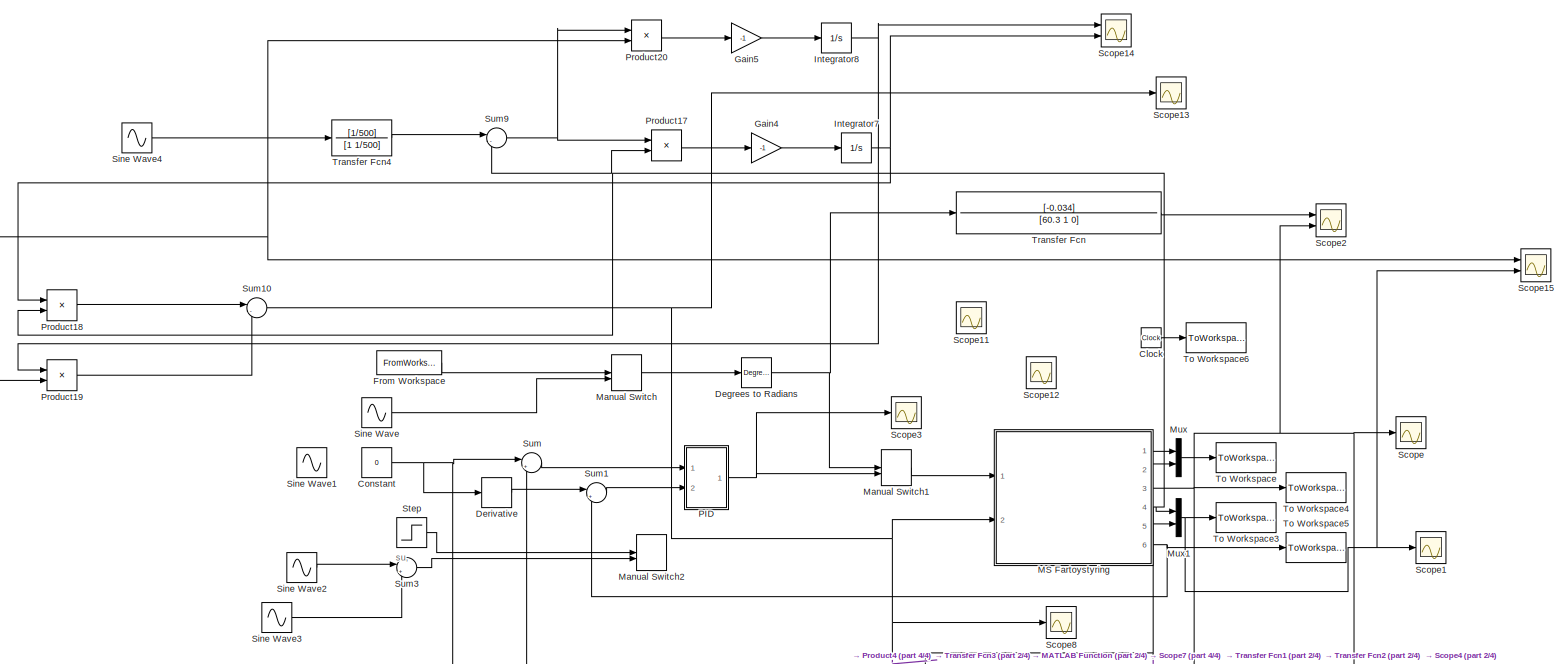
[diagram: root canvas - part 1/4, top left region]
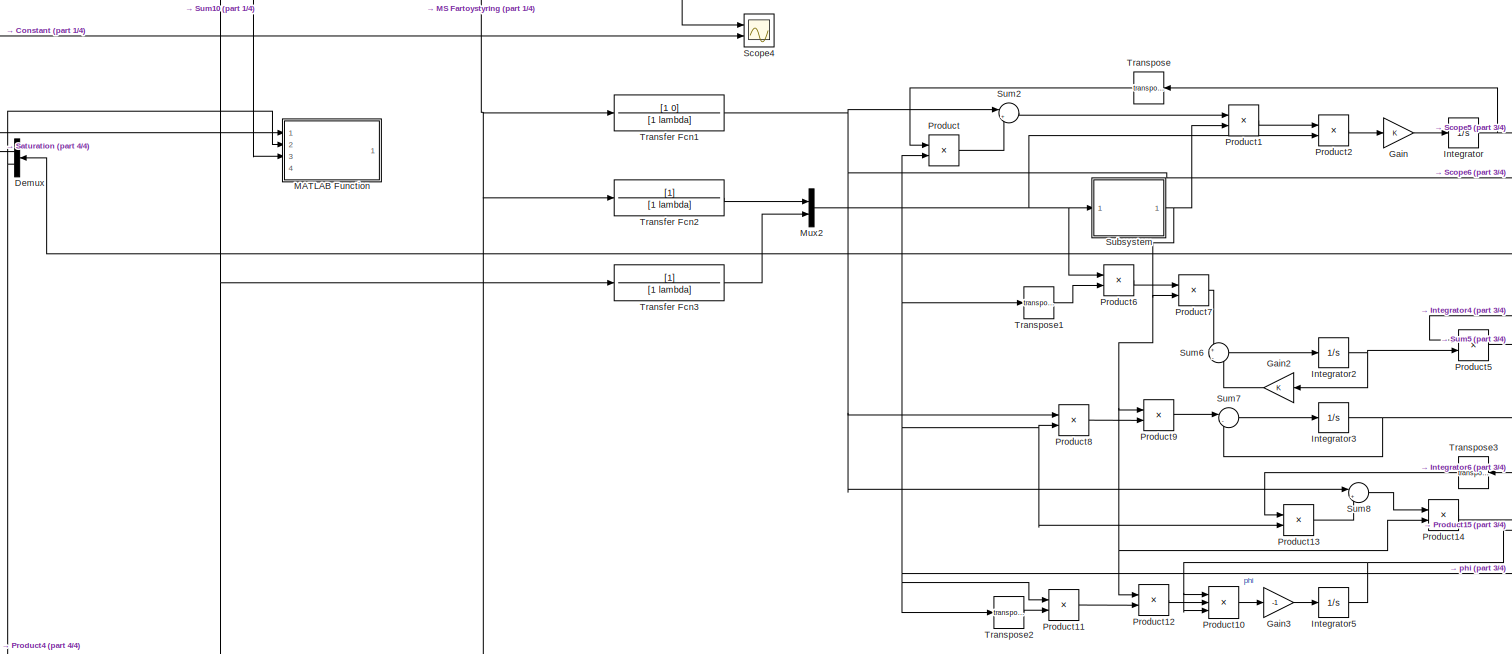
[diagram: root canvas - part 2/4, central region]
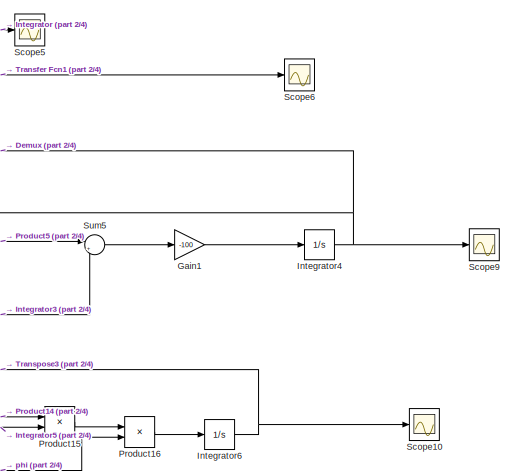
[diagram: root canvas - part 3/4, middle right region]
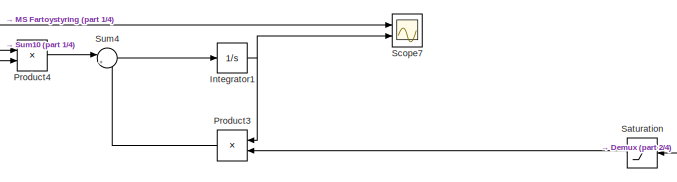
[diagram: root canvas - part 4/4, bottom center region]
MODEL slx_58f1f63805c6
KIND model
CONFIG AbsTol = auto
CONFIG EnableMultiTasking = on
CONFIG FixedStep = auto
CONFIG MaxStep = auto
CONFIG MinStep = auto
CONFIG RelTol = 1e-2
CONFIG SampleTimeConstraint = Unconstrained
CONFIG Solver = VariableStepAuto
CONFIG SolverName = VariableStepAuto
CONFIG StartTime = tstart
CONFIG StopTime = tstop
BLOCK [Clock] Clock
BLOCK [Constant] Constant
  Value = 0
BLOCK [Reference] Degrees to Radians  REF=simulink_extras/Transformations/Degrees to
Radians
  Ports = [1, 1]
  SourceBlock = simulink_extras/Transformations/Degrees to\nRadians
  SourceProductBaseCode = SL
  SourceProductName = Simulink
  SourceType = DegreesToRadians
BLOCK [Demux] Demux
  Commented = on
  DisplayOption = bar
  Outputs = 2
  Ports = [1, 2]
BLOCK [Derivative] Derivative
BLOCK [FromWorkspace] From Workspace
  SampleTime = 0
  VariableName = delta_c
  ZeroCross = on
BLOCK [Gain] Gain
  Commented = on
  OutDataTypeStr = Inherit: Inherit via internal rule
  ParamDataTypeStr = Inherit: Inherit via internal rule
  SaturateOnIntegerOverflow = off
BLOCK [Gain] Gain1
  Commented = on
  Gain = -100
  OutDataTypeStr = Inherit: Inherit via internal rule
  ParamDataTypeStr = Inherit: Inherit via internal rule
  SaturateOnIntegerOverflow = off
BLOCK [Gain] Gain2
  Commented = on
  OutDataTypeStr = Inherit: Inherit via internal rule
  ParamDataTypeStr = Inherit: Inherit via internal rule
  SaturateOnIntegerOverflow = off
BLOCK [Gain] Gain3
  Commented = on
  Gain = -1
  OutDataTypeStr = Inherit: Inherit via internal rule
  ParamDataTypeStr = Inherit: Inherit via internal rule
  SaturateOnIntegerOverflow = off
BLOCK [Gain] Gain4
  Gain = -1
  OutDataTypeStr = Inherit: Inherit via internal rule
  ParamDataTypeStr = Inherit: Inherit via internal rule
  SaturateOnIntegerOverflow = off
BLOCK [Gain] Gain5
  Gain = -1
  OutDataTypeStr = Inherit: Inherit via internal rule
  ParamDataTypeStr = Inherit: Inherit via internal rule
  SaturateOnIntegerOverflow = off
BLOCK [Integrator] Integrator
  Commented = on
  InitialCondition = [-10;10]
  Ports = [1, 1]
BLOCK [Integrator] Integrator1
  Commented = on
  InitialCondition = v0(1)
  Ports = [1, 1]
BLOCK [Integrator] Integrator2
  Commented = on
  InitialCondition = [0 0;0 0]
  Ports = [1, 1]
BLOCK [Integrator] Integrator3
  Commented = on
  InitialCondition = [0;0]
  Ports = [1, 1]
BLOCK [Integrator] Integrator4
  Commented = on
  InitialCondition = [-0.1 0.1]
  LimitOutput = on
  LowerSaturationLimit = [-inf 0.0001]
  Ports = [1, 1]
  UpperSaturationLimit = [-0.0001 inf]
BLOCK [Integrator] Integrator5
  Commented = on
  InitialCondition = [100 0; 0 100]
  Ports = [1, 1]
BLOCK [Integrator] Integrator6
  Commented = on
  InitialCondition = [-1; 1]
  LimitOutput = on
  LowerSaturationLimit = [-inf; 0]
  Ports = [1, 1]
  UpperSaturationLimit = [0; inf]
BLOCK [Integrator] Integrator7
  InitialCondition = 5
  LimitOutput = on
  LowerSaturationLimit = 0
  Ports = [1, 1]
BLOCK [Integrator] Integrator8
  InitialCondition = 10
  LimitOutput = on
  LowerSaturationLimit = 0
  Ports = [1, 1]
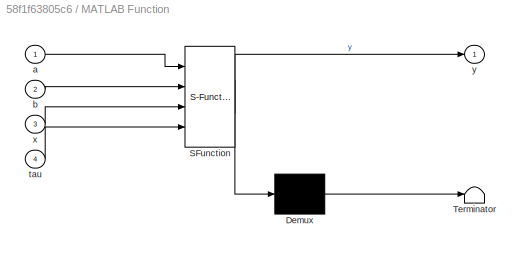
BLOCK [SubSystem] MATLAB Function
  Commented = on
  ErrorFcn = Stateflow.Translate.translate
  PermitHierarchicalResolution = ExplicitOnly
  Ports = [4, 1]
  RequestExecContextInheritance = off
  SFBlockType = MATLAB Function
  TreatAsAtomicUnit = on
BLOCK [Demux] MATLAB Function/ Demux 
  Outputs = 1
  Ports = [1, 1]
BLOCK [S-Function] MATLAB Function/ SFunction 
  EnableBusSupport = on
  FunctionName = sf_sfun
  PortCounts = [4 2]
  Ports = [4, 2]
  SFcnIsStateOwnerBlock = off
  SFunctionDeploymentMode = off
  Tag = Stateflow S-Function MSFartoystyring_jallajalla_adaptiv 2
BLOCK [Terminator] MATLAB Function/ Terminator 
BLOCK [Inport] MATLAB Function/a
  IconDisplay = Port number
BLOCK [Inport] MATLAB Function/b
  IconDisplay = Port number
  Port = 2
BLOCK [Inport] MATLAB Function/tau
  IconDisplay = Port number
  Port = 4
BLOCK [Inport] MATLAB Function/x
  IconDisplay = Port number
  Port = 3
BLOCK [Outport] MATLAB Function/y
  IconDisplay = Port number
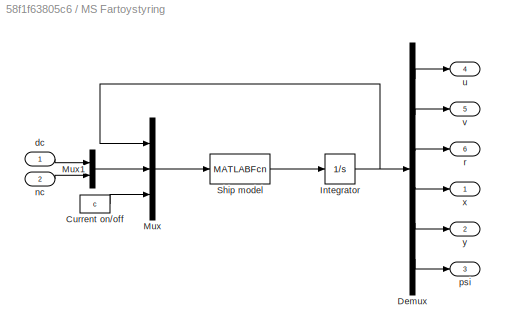
BLOCK [SubSystem] MS Fartoystyring
  Ports = [2, 6]
  RequestExecContextInheritance = off
BLOCK [Constant] MS Fartoystyring/Current on//off
  Value = c
BLOCK [Demux] MS Fartoystyring/Demux
  DisplayOption = bar
  Outputs = 6
  Ports = [1, 6]
BLOCK [Integrator] MS Fartoystyring/Integrator
  InitialCondition = [u0 v0 r0 x0 y0 psi0]'
  Ports = [1, 1]
BLOCK [Mux] MS Fartoystyring/Mux
  DisplayOption = bar
  Inputs = 3
  Ports = [3, 1]
BLOCK [Mux] MS Fartoystyring/Mux1
  DisplayOption = bar
  Inputs = 2
  Ports = [2, 1]
BLOCK [MATLABFcn] MS Fartoystyring/Ship model
  MATLABFcn = msfartoystyring(u(1:6), u(7:8), u(9))
  OutputDimensions = 6
  Ports = [1, 1]
BLOCK [Inport] MS Fartoystyring/dc
  IconDisplay = Port number
BLOCK [Inport] MS Fartoystyring/nc
  IconDisplay = Port number
  Port = 2
BLOCK [Outport] MS Fartoystyring/psi
  IconDisplay = Port number
  Port = 3
BLOCK [Outport] MS Fartoystyring/r
  IconDisplay = Port number
  Port = 6
BLOCK [Outport] MS Fartoystyring/u
  IconDisplay = Port number
  Port = 4
BLOCK [Outport] MS Fartoystyring/v
  IconDisplay = Port number
  Port = 5
BLOCK [Outport] MS Fartoystyring/x
  IconDisplay = Port number
BLOCK [Outport] MS Fartoystyring/y
  IconDisplay = Port number
  Port = 2
BLOCK [ManualSwitch] Manual Switch
  CurrentSetting = 0
BLOCK [ManualSwitch] Manual Switch1
  CurrentSetting = 0
BLOCK [ManualSwitch] Manual Switch2
BLOCK [Mux] Mux
  DisplayOption = bar
  Inputs = 2
  Ports = [2, 1]
BLOCK [Mux] Mux1
  DisplayOption = bar
  Inputs = 2
  Ports = [2, 1]
BLOCK [Mux] Mux2
  Commented = on
  DisplayOption = bar
  Inputs = 2
  Ports = [2, 1]
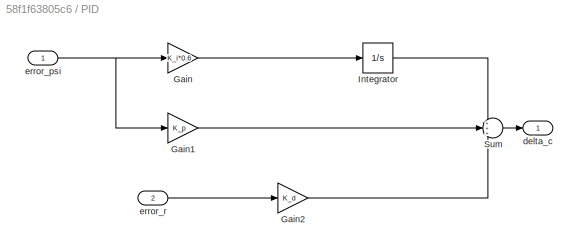
BLOCK [SubSystem] PID
  Ports = [2, 1]
  RequestExecContextInheritance = off
BLOCK [Gain] PID/Gain
  Gain = K_i*0.6
  OutDataTypeStr = Inherit: Inherit via internal rule
  ParamDataTypeStr = Inherit: Inherit via internal rule
  SaturateOnIntegerOverflow = off
BLOCK [Gain] PID/Gain1
  Gain = K_p
  OutDataTypeStr = Inherit: Inherit via internal rule
  ParamDataTypeStr = Inherit: Inherit via internal rule
  SaturateOnIntegerOverflow = off
BLOCK [Gain] PID/Gain2
  Gain = K_d
  OutDataTypeStr = Inherit: Inherit via internal rule
  ParamDataTypeStr = Inherit: Inherit via internal rule
  SaturateOnIntegerOverflow = off
BLOCK [Integrator] PID/Integrator
  Ports = [1, 1]
BLOCK [Sum] PID/Sum
  IconShape = round
  InputSameDT = off
  Inputs = +++
  OutDataTypeStr = Inherit: Inherit via internal rule
  Ports = [3, 1]
  SaturateOnIntegerOverflow = off
BLOCK [Outport] PID/delta_c
  IconDisplay = Port number
BLOCK [Inport] PID/error_psi
  IconDisplay = Port number
BLOCK [Inport] PID/error_r 
  IconDisplay = Port number
  Port = 2
BLOCK [Product] Product
  Commented = on
  InputSameDT = off
  Multiplication = Matrix(*)
  OutDataTypeStr = Inherit: Inherit via internal rule
  Ports = [2, 1]
  RndMeth = Floor
  SaturateOnIntegerOverflow = off
BLOCK [Product] Product1
  Commented = on
  InputSameDT = off
  Inputs = */
  OutDataTypeStr = Inherit: Inherit via internal rule
  Ports = [2, 1]
  RndMeth = Floor
  SaturateOnIntegerOverflow = off
BLOCK [Product] Product10
  Commented = on
  InputSameDT = off
  Inputs = ***
  Multiplication = Matrix(*)
  OutDataTypeStr = Inherit: Inherit via internal rule
  Ports = [3, 1]
  RndMeth = Floor
  SaturateOnIntegerOverflow = off
BLOCK [Product] Product11
  Commented = on
  InputSameDT = off
  Multiplication = Matrix(*)
  OutDataTypeStr = Inherit: Inherit via internal rule
  Ports = [2, 1]
  RndMeth = Floor
  SaturateOnIntegerOverflow = off
BLOCK [Product] Product12
  Commented = on
  InputSameDT = off
  Inputs = /*
  OutDataTypeStr = Inherit: Inherit via internal rule
  Ports = [2, 1]
  RndMeth = Floor
  SaturateOnIntegerOverflow = off
BLOCK [Product] Product13
  Commented = on
  InputSameDT = off
  Multiplication = Matrix(*)
  OutDataTypeStr = Inherit: Inherit via internal rule
  Ports = [2, 1]
  RndMeth = Floor
  SaturateOnIntegerOverflow = off
BLOCK [Product] Product14
  Commented = on
  InputSameDT = off
  Inputs = */
  OutDataTypeStr = Inherit: Inherit via internal rule
  Ports = [2, 1]
  RndMeth = Floor
  SaturateOnIntegerOverflow = off
BLOCK [Product] Product15
  Commented = on
  InputSameDT = off
  OutDataTypeStr = Inherit: Inherit via internal rule
  Ports = [2, 1]
  RndMeth = Floor
  SaturateOnIntegerOverflow = off
BLOCK [Product] Product16
  Commented = on
  InputSameDT = off
  Multiplication = Matrix(*)
  OutDataTypeStr = Inherit: Inherit via internal rule
  Ports = [2, 1]
  RndMeth = Floor
  SaturateOnIntegerOverflow = off
BLOCK [Product] Product17
  InputSameDT = off
  OutDataTypeStr = Inherit: Inherit via internal rule
  Ports = [2, 1]
  RndMeth = Floor
  SaturateOnIntegerOverflow = off
BLOCK [Product] Product18
  InputSameDT = off
  OutDataTypeStr = Inherit: Inherit via internal rule
  Ports = [2, 1]
  RndMeth = Floor
  SaturateOnIntegerOverflow = off
BLOCK [Product] Product19
  InputSameDT = off
  OutDataTypeStr = Inherit: Inherit via internal rule
  Ports = [2, 1]
  RndMeth = Floor
  SaturateOnIntegerOverflow = off
BLOCK [Product] Product2
  Commented = on
  InputSameDT = off
  OutDataTypeStr = Inherit: Inherit via internal rule
  Ports = [2, 1]
  RndMeth = Floor
  SaturateOnIntegerOverflow = off
BLOCK [Product] Product20
  InputSameDT = off
  OutDataTypeStr = Inherit: Inherit via internal rule
  Ports = [2, 1]
  RndMeth = Floor
  SaturateOnIntegerOverflow = off
BLOCK [Product] Product3
  Commented = on
  InputSameDT = off
  OutDataTypeStr = Inherit: Inherit via internal rule
  Ports = [2, 1]
  RndMeth = Floor
  SaturateOnIntegerOverflow = off
BLOCK [Product] Product4
  Commented = on
  InputSameDT = off
  OutDataTypeStr = Inherit: Inherit via internal rule
  Ports = [2, 1]
  RndMeth = Floor
  SaturateOnIntegerOverflow = off
BLOCK [Product] Product5
  Commented = on
  InputSameDT = off
  Multiplication = Matrix(*)
  OutDataTypeStr = Inherit: Inherit via internal rule
  Ports = [2, 1]
  RndMeth = Floor
  SaturateOnIntegerOverflow = off
BLOCK [Product] Product6
  Commented = on
  InputSameDT = off
  Multiplication = Matrix(*)
  OutDataTypeStr = Inherit: Inherit via internal rule
  Ports = [2, 1]
  RndMeth = Floor
  SaturateOnIntegerOverflow = off
BLOCK [Product] Product7
  Commented = on
  InputSameDT = off
  Inputs = */
  OutDataTypeStr = Inherit: Inherit via internal rule
  Ports = [2, 1]
  RndMeth = Floor
  SaturateOnIntegerOverflow = off
BLOCK [Product] Product8
  Commented = on
  InputSameDT = off
  OutDataTypeStr = Inherit: Inherit via internal rule
  Ports = [2, 1]
  RndMeth = Floor
  SaturateOnIntegerOverflow = off
BLOCK [Product] Product9
  Commented = on
  InputSameDT = off
  Inputs = /*
  OutDataTypeStr = Inherit: Inherit via internal rule
  Ports = [2, 1]
  RndMeth = Floor
  SaturateOnIntegerOverflow = off
BLOCK [Saturate] Saturation
  Commented = on
  InputPortMap = u0
  LowerLimit = -inf
  Ports = [1, 1]
  UpperLimit = 0
BLOCK [Scope] Scope
  Floating = off
  NumInputPorts = 1
  Ports = [1]
  ScopeSpecificationString = Simulink.scopes.TimeScopeBlockCfg('CurrentConfiguration', extmgr.ConfigurationSet(extmgr.Configuration('Core','General UI',true),extmgr.Configuration('Core','Source UI',true),extmgr.Configuration('Sources','WiredSimulink',true,'DataLoggingVariableName','ScopeData1'),extmgr.Configuration('Visuals','Time Domain',true,'SerializedDisplays',{struct('MinYLimReal','-0.00544','MaxYLimReal','0.00287','YLab...<+1377ch>
BLOCK [Scope] Scope1
  Floating = off
  NumInputPorts = 1
  Ports = [1]
  ScopeSpecificationString = Simulink.scopes.TimeScopeBlockCfg('CurrentConfiguration', extmgr.ConfigurationSet(extmgr.Configuration('Core','General UI',true),extmgr.Configuration('Core','Source UI',true),extmgr.Configuration('Sources','WiredSimulink',true,'DataLoggingVariableName','ScopeData4'),extmgr.Configuration('Visuals','Time Domain',true,'SerializedDisplays',{struct('MinYLimReal','0.78161','MaxYLimReal','6.52383','YLabe...<+1440ch>
BLOCK [Scope] Scope10
  Commented = on
  Floating = off
  NumInputPorts = 1
  Ports = [1]
  ScopeSpecificationString = Simulink.scopes.TimeScopeBlockCfg('CurrentConfiguration', extmgr.ConfigurationSet(extmgr.Configuration('Core','General UI',true),extmgr.Configuration('Core','Source UI',true),extmgr.Configuration('Sources','WiredSimulink',true,'DataLoggingVariableName','ScopeData10'),extmgr.Configuration('Visuals','Time Domain',true,'SerializedDisplays',{struct('MinYLimReal','-50.50825','MaxYLimReal','410.54031','...<+1443ch>
BLOCK [Scope] Scope11
  Floating = off
  NumInputPorts = 1
  Ports = [1]
  ScopeSpecificationString = Simulink.scopes.TimeScopeBlockCfg('CurrentConfiguration', extmgr.ConfigurationSet(extmgr.Configuration('Core','General UI',true),extmgr.Configuration('Core','Source UI',true),extmgr.Configuration('Sources','WiredSimulink',true,'DataLoggingVariableName','ScopeData11'),extmgr.Configuration('Visuals','Time Domain',true,'SerializedDisplays',{struct('MinYLimReal','-1.00000','MaxYLimReal','1.00000','YLa...<+1369ch>
BLOCK [Scope] Scope12
  Floating = off
  NumInputPorts = 1
  Ports = [1]
  ScopeSpecificationString = Simulink.scopes.TimeScopeBlockCfg('CurrentConfiguration', extmgr.ConfigurationSet(extmgr.Configuration('Core','General UI',true),extmgr.Configuration('Core','Source UI',true),extmgr.Configuration('Sources','WiredSimulink',true,'DataLoggingVariableName','ScopeData12'),extmgr.Configuration('Visuals','Time Domain',true,'SerializedDisplays',{struct('MinYLimReal','-0.54542','MaxYLimReal','0.54542','YLa...<+1378ch>
BLOCK [Scope] Scope13
  Floating = off
  NumInputPorts = 1
  Ports = [1]
  ScopeSpecificationString = Simulink.scopes.TimeScopeBlockCfg('CurrentConfiguration', extmgr.ConfigurationSet(extmgr.Configuration('Core','General UI',true),extmgr.Configuration('Core','Source UI',true),extmgr.Configuration('Sources','WiredSimulink',true,'DataLoggingVariableName','ScopeData11'),extmgr.Configuration('Visuals','Time Domain',true,'SerializedDisplays',{struct('MinYLimReal','-76.04357','MaxYLimReal','71.55113','Y...<+1371ch>
BLOCK [Scope] Scope14
  Floating = off
  NumInputPorts = 2
  Ports = [2]
  ScopeSpecificationString = Simulink.scopes.TimeScopeBlockCfg('CurrentConfiguration', extmgr.ConfigurationSet(extmgr.Configuration('Core','General UI',true),extmgr.Configuration('Core','Source UI',true),extmgr.Configuration('Sources','WiredSimulink',true,'DataLoggingVariableName','ScopeData12'),extmgr.Configuration('Visuals','Time Domain',true,'SerializedDisplays',{struct('MinYLimReal','-719.88814','MaxYLimReal','6478.99326'...<+1403ch>
BLOCK [Scope] Scope15
  Floating = off
  NumInputPorts = 2
  Ports = [2]
  ScopeSpecificationString = Simulink.scopes.TimeScopeBlockCfg('CurrentConfiguration', extmgr.ConfigurationSet(extmgr.Configuration('Core','General UI',true),extmgr.Configuration('Core','Source UI',true),extmgr.Configuration('Sources','WiredSimulink',true,'DataLoggingVariableName','ScopeData13'),extmgr.Configuration('Visuals','Time Domain',true,'SerializedDisplays',{struct('MinYLimReal','-0.75294','MaxYLimReal','6.75033','YLa...<+1412ch>
BLOCK [Scope] Scope2
  Floating = off
  NumInputPorts = 2
  Ports = [2]
  ScopeSpecificationString = Simulink.scopes.TimeScopeBlockCfg('CurrentConfiguration', extmgr.ConfigurationSet(extmgr.Configuration('Core','General UI',true),extmgr.Configuration('Core','Source UI',true),extmgr.Configuration('Sources','WiredSimulink',true,'DataLoggingVariableName','ScopeData1'),extmgr.Configuration('Visuals','Time Domain',true,'SerializedDisplays',{struct('MinYLimReal','-11.34487','MaxYLimReal','1.26054','YLa...<+1415ch>
BLOCK [Scope] Scope3
  Floating = off
  NumInputPorts = 1
  Ports = [1]
  ScopeSpecificationString = Simulink.scopes.TimeScopeBlockCfg('CurrentConfiguration', extmgr.ConfigurationSet(extmgr.Configuration('Core','General UI',true),extmgr.Configuration('Core','Source UI',true),extmgr.Configuration('Sources','WiredSimulink',true,'DataLoggingVariableName','ScopeData2'),extmgr.Configuration('Visuals','Time Domain',true,'SerializedDisplays',{struct('MinYLimReal','-0.01984','MaxYLimReal','0.00471','YLab...<+1362ch>
BLOCK [Scope] Scope4
  Floating = off
  NumInputPorts = 2
  Ports = [2]
  ScopeSpecificationString = Simulink.scopes.TimeScopeBlockCfg('CurrentConfiguration', extmgr.ConfigurationSet(extmgr.Configuration('Core','General UI',true),extmgr.Configuration('Core','Source UI',true),extmgr.Configuration('Sources','WiredSimulink',true,'DataLoggingVariableName','ScopeData3'),extmgr.Configuration('Visuals','Time Domain',true,'SerializedDisplays',{struct('MinYLimReal','-0.00544','MaxYLimReal','0.00287','YLab...<+1388ch>
BLOCK [Scope] Scope5
  Commented = on
  Floating = off
  NumInputPorts = 1
  Ports = [1]
  ScopeSpecificationString = Simulink.scopes.TimeScopeBlockCfg('CurrentConfiguration', extmgr.ConfigurationSet(extmgr.Configuration('Core','General UI',true),extmgr.Configuration('Core','Source UI',true),extmgr.Configuration('Sources','WiredSimulink',true,'DataLoggingVariableName','ScopeData5'),extmgr.Configuration('Visuals','Time Domain',true,'SerializedDisplays',{struct('MinYLimReal','-15.74914','MaxYLimReal','16.53673','YL...<+1436ch>
BLOCK [Scope] Scope6
  Commented = on
  Floating = off
  NumInputPorts = 1
  Ports = [1]
  ScopeSpecificationString = Simulink.scopes.TimeScopeBlockCfg('CurrentConfiguration', extmgr.ConfigurationSet(extmgr.Configuration('Core','General UI',true),extmgr.Configuration('Core','Source UI',true),extmgr.Configuration('Sources','WiredSimulink',true,'DataLoggingVariableName','ScopeData6'),extmgr.Configuration('Visuals','Time Domain',true,'SerializedDisplays',{struct('MinYLimReal','-0.25083','MaxYLimReal','2.25009','YLab...<+1391ch>
BLOCK [Scope] Scope7
  Commented = on
  Floating = off
  NumInputPorts = 2
  Ports = [2]
  ScopeSpecificationString = Simulink.scopes.TimeScopeBlockCfg('CurrentConfiguration', extmgr.ConfigurationSet(extmgr.Configuration('Core','General UI',true),extmgr.Configuration('Core','Source UI',true),extmgr.Configuration('Sources','WiredSimulink',true,'DataLoggingVariableName','ScopeData7'),extmgr.Configuration('Visuals','Time Domain',true,'SerializedDisplays',{struct('MinYLimReal','1.26819','MaxYLimReal','8.58628','YLabe...<+1488ch>
BLOCK [Scope] Scope8
  Floating = off
  NumInputPorts = 1
  Ports = [1]
  ScopeSpecificationString = Simulink.scopes.TimeScopeBlockCfg('CurrentConfiguration', extmgr.ConfigurationSet(extmgr.Configuration('Core','General UI',true),extmgr.Configuration('Core','Source UI',true),extmgr.Configuration('Sources','WiredSimulink',true,'DataLoggingVariableName','ScopeData8'),extmgr.Configuration('Visuals','Time Domain',true,'SerializedDisplays',{struct('MinYLimReal','-76.04357','MaxYLimReal','71.55113','YL...<+1370ch>
BLOCK [Scope] Scope9
  Commented = on
  Floating = off
  NumInputPorts = 1
  Ports = [1]
  ScopeSpecificationString = Simulink.scopes.TimeScopeBlockCfg('CurrentConfiguration', extmgr.ConfigurationSet(extmgr.Configuration('Core','General UI',true),extmgr.Configuration('Core','Source UI',true),extmgr.Configuration('Sources','WiredSimulink',true,'DataLoggingVariableName','ScopeData9'),extmgr.Configuration('Visuals','Time Domain',true,'SerializedDisplays',{struct('MinYLimReal','-1.37948','MaxYLimReal','1.48262','YLab...<+1407ch>
BLOCK [Sin] Sine Wave
  Amplitude = 10
  Frequency = 0.01
  Ports = [0, 1]
  SampleTime = 0
BLOCK [Sin] Sine Wave1
  Amplitude = 0.4
  Frequency = 0.004
  Ports = [0, 1]
  SampleTime = 0
BLOCK [Sin] Sine Wave2
  Amplitude = 2
  Bias = 2
  Frequency = 0.0007274
  Ports = [0, 1]
  SampleTime = 0
BLOCK [Sin] Sine Wave3
  Amplitude = 2.42
  Frequency = 0.00012425
  Ports = [0, 1]
  SampleTime = 0
BLOCK [Sin] Sine Wave4
  Amplitude = 2
  Bias = 4
  Frequency = 0.001
  Ports = [0, 1]
  SampleTime = 0
BLOCK [Step] Step
  After = 4
  Before = 2
  SampleTime = 0
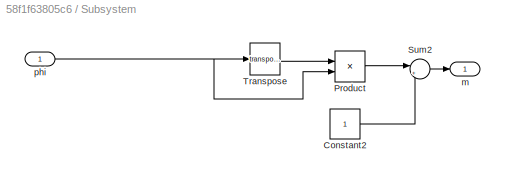
BLOCK [SubSystem] Subsystem
  Commented = on
  Ports = [1, 1]
  RequestExecContextInheritance = off
BLOCK [Constant] Subsystem/Constant2
BLOCK [Product] Subsystem/Product
  InputSameDT = off
  Multiplication = Matrix(*)
  OutDataTypeStr = Inherit: Inherit via internal rule
  Ports = [2, 1]
  RndMeth = Floor
  SaturateOnIntegerOverflow = off
BLOCK [Sum] Subsystem/Sum2
  IconShape = round
  InputSameDT = off
  Inputs = |++
  OutDataTypeStr = Inherit: Inherit via internal rule
  Ports = [2, 1]
  SaturateOnIntegerOverflow = off
BLOCK [Math] Subsystem/Transpose
  Operator = transpose
  Ports = [1, 1]
BLOCK [Outport] Subsystem/m
  IconDisplay = Port number
BLOCK [Inport] Subsystem/phi
  IconDisplay = Port number
BLOCK [Sum] Sum
  IconShape = round
  InputSameDT = off
  Inputs = |+-
  OutDataTypeStr = Inherit: Inherit via internal rule
  Ports = [2, 1]
  SaturateOnIntegerOverflow = off
BLOCK [Sum] Sum1
  IconShape = round
  InputSameDT = off
  Inputs = |+-
  OutDataTypeStr = Inherit: Inherit via internal rule
  Ports = [2, 1]
  SaturateOnIntegerOverflow = off
BLOCK [Sum] Sum10
  IconShape = round
  InputSameDT = off
  Inputs = |-+
  OutDataTypeStr = Inherit: Inherit via internal rule
  Ports = [2, 1]
  SaturateOnIntegerOverflow = off
BLOCK [Sum] Sum2
  Commented = on
  IconShape = round
  InputSameDT = off
  Inputs = |+-
  OutDataTypeStr = Inherit: Inherit via internal rule
  Ports = [2, 1]
  SaturateOnIntegerOverflow = off
BLOCK [Sum] Sum3
  IconShape = round
  InputSameDT = off
  Inputs = |++
  OutDataTypeStr = Inherit: Inherit via internal rule
  Ports = [2, 1]
  SaturateOnIntegerOverflow = off
BLOCK [Sum] Sum4
  Commented = on
  IconShape = round
  InputSameDT = off
  Inputs = |++
  OutDataTypeStr = Inherit: Inherit via internal rule
  Ports = [2, 1]
  SaturateOnIntegerOverflow = off
BLOCK [Sum] Sum5
  Commented = on
  IconShape = round
  InputSameDT = off
  Inputs = |++
  OutDataTypeStr = Inherit: Inherit via internal rule
  Ports = [2, 1]
  SaturateOnIntegerOverflow = off
BLOCK [Sum] Sum6
  Commented = on
  IconShape = round
  InputSameDT = off
  Inputs = +|-
  OutDataTypeStr = Inherit: Inherit via internal rule
  Ports = [2, 1]
  SaturateOnIntegerOverflow = off
BLOCK [Sum] Sum7
  Commented = on
  IconShape = round
  InputSameDT = off
  Inputs = |--
  OutDataTypeStr = Inherit: Inherit via internal rule
  Ports = [2, 1]
  SaturateOnIntegerOverflow = off
BLOCK [Sum] Sum8
  Commented = on
  IconShape = round
  InputSameDT = off
  Inputs = |+-
  OutDataTypeStr = Inherit: Inherit via internal rule
  Ports = [2, 1]
  SaturateOnIntegerOverflow = off
BLOCK [Sum] Sum9
  IconShape = round
  InputSameDT = off
  Inputs = |-+
  OutDataTypeStr = Inherit: Inherit via internal rule
  Ports = [2, 1]
  SaturateOnIntegerOverflow = off
BLOCK [ToWorkspace] To Workspace
  MaxDataPoints = inf
  Ports = [1]
  SampleTime = tsamp
  VariableName = p
BLOCK [ToWorkspace] To Workspace3
  MaxDataPoints = inf
  Ports = [1]
  SampleTime = tsamp
  VariableName = v
BLOCK [ToWorkspace] To Workspace4
  MaxDataPoints = inf
  Ports = [1]
  SampleTime = tsamp
  VariableName = psi
BLOCK [ToWorkspace] To Workspace5
  MaxDataPoints = inf
  Ports = [1]
  SampleTime = tsamp
  VariableName = r
BLOCK [ToWorkspace] To Workspace6
  MaxDataPoints = inf
  Ports = [1]
  SampleTime = tsamp
  VariableName = t
BLOCK [TransferFcn] Transfer Fcn
  Denominator = [60.3 1 0]
  Numerator = [-0.034]
BLOCK [TransferFcn] Transfer Fcn1
  Commented = on
  Denominator = [1 lambda]
  Numerator = [1 0]
BLOCK [TransferFcn] Transfer Fcn2
  Commented = on
  Denominator = [1 lambda]
BLOCK [TransferFcn] Transfer Fcn3
  Commented = on
  Denominator = [1 lambda]
BLOCK [TransferFcn] Transfer Fcn4
  Denominator = [1 1/500]
  Numerator = [1/500]
BLOCK [Math] Transpose
  Commented = on
  Operator = transpose
  Ports = [1, 1]
BLOCK [Math] Transpose1
  Commented = on
  Operator = transpose
  Ports = [1, 1]
BLOCK [Math] Transpose2
  Commented = on
  Operator = transpose
  Ports = [1, 1]
BLOCK [Math] Transpose3
  Commented = on
  Operator = transpose
  Ports = [1, 1]
ANNOTATION (root): su,
LINE Clock:1 -> To Workspace6:1
NET Constant:1 -> Derivative:1, Scope4:2, Sum:1
NET Degrees to Radians:1 -> Manual Switch1:1, Transfer Fcn:1
NET Demux:1 -> MATLAB Function:1, Saturation:1
NET Demux:2 -> MATLAB Function:2, Product4:2
LINE Derivative:1 -> Sum1:1
LINE From Workspace:1 -> Manual Switch:1
LINE Gain1:1 -> Integrator4:1
LINE Gain2:1 -> Sum6:2
LINE Gain3:1 -> Integrator5:1
LINE Gain4:1 -> Integrator7:1
LINE Gain5:1 -> Integrator8:1
LINE Gain:1 -> Integrator:1
NET Integrator1:1 -> Product3:1, Scope7:2
NET Integrator2:1 -> Gain2:1, Product5:2
NET Integrator3:1 -> Sum5:2, Sum7:2
NET Integrator4:1 -> Demux:1, Product5:1, Scope9:1
NET Integrator5:1 -> Product10:1, Product10:3, Product15:2
NET Integrator6:1 -> Scope10:1, Transpose3:1
NET Integrator7:1 -> Product18:1, Scope14:2
NET Integrator8:1 -> Product19:1, Scope14:1
NET Integrator:1 -> Scope5:1, Transpose:1
LINE MS Fartoystyring/Current on//off:1 -> MS Fartoystyring/Mux:3
LINE MS Fartoystyring/Demux:1 -> MS Fartoystyring/u:1
LINE MS Fartoystyring/Demux:2 -> MS Fartoystyring/v:1
LINE MS Fartoystyring/Demux:3 -> MS Fartoystyring/r:1
LINE MS Fartoystyring/Demux:4 -> MS Fartoystyring/x:1
LINE MS Fartoystyring/Demux:5 -> MS Fartoystyring/y:1
LINE MS Fartoystyring/Demux:6 -> MS Fartoystyring/psi:1
NET MS Fartoystyring/Integrator:1 -> MS Fartoystyring/Demux:1, MS Fartoystyring/Mux:1
LINE MS Fartoystyring/Mux1:1 -> MS Fartoystyring/Mux:2
LINE MS Fartoystyring/Mux:1 -> MS Fartoystyring/Ship model:1
LINE MS Fartoystyring/Ship model:1 -> MS Fartoystyring/Integrator:1
LINE MS Fartoystyring/dc:1 -> MS Fartoystyring/Mux1:1
LINE MS Fartoystyring/nc:1 -> MS Fartoystyring/Mux1:2
LINE MS Fartoystyring:1 -> Mux:1
LINE MS Fartoystyring:2 -> Mux:2
NET MS Fartoystyring:3 -> Scope2:2, Scope4:1, Scope:1, Sum:2, To Workspace4:1
NET MS Fartoystyring:4 -> MATLAB Function:3, Mux1:1, Product17:2, Product18:2, Scope7:1, Sum9:2, Transfer Fcn1:1, Transfer Fcn2:1
LINE MS Fartoystyring:5 -> Mux1:2
NET MS Fartoystyring:6 -> Sum1:2, To Workspace5:1
LINE Manual Switch1:1 -> MS Fartoystyring:1
LINE Manual Switch:1 -> Degrees to Radians:1
NET Mux1:1 -> Scope15:2, Scope1:1, To Workspace3:1
NET Mux2:1 -> Product11:1, Product13:2, Product16:2, Product2:2, Product6:1, Product8:2, Product:2, Subsystem:1, Transpose1:1, Transpose2:1
LINE Mux:1 -> To Workspace:1
LINE PID/Gain1:1 -> PID/Sum:2
LINE PID/Gain2:1 -> PID/Sum:3
LINE PID/Gain:1 -> PID/Integrator:1
LINE PID/Integrator:1 -> PID/Sum:1
LINE PID/Sum:1 -> PID/delta_c:1
NET PID/error_psi:1 -> PID/Gain1:1, PID/Gain:1
LINE PID/error_r :1 -> PID/Gain2:1
NET PID:1 -> Manual Switch1:2, Scope3:1
LINE Product10:1 -> Gain3:1
LINE Product11:1 -> Product12:2
LINE Product12:1 -> Product10:2
LINE Product13:1 -> Sum8:2
LINE Product14:1 -> Product15:1
LINE Product15:1 -> Product16:1
LINE Product16:1 -> Integrator6:1
LINE Product17:1 -> Gain4:1
LINE Product18:1 -> Sum10:1
LINE Product19:1 -> Sum10:2
LINE Product1:1 -> Product2:1
LINE Product20:1 -> Gain5:1
LINE Product2:1 -> Gain:1
LINE Product3:1 -> Sum4:2
LINE Product4:1 -> Sum4:1
LINE Product5:1 -> Sum5:1
LINE Product6:1 -> Product7:1
LINE Product7:1 -> Sum6:1
LINE Product8:1 -> Product9:2
LINE Product9:1 -> Sum7:1
LINE Product:1 -> Sum2:2
LINE Saturation:1 -> Product3:2
LINE Sine Wave2:1 -> Sum3:1
LINE Sine Wave3:1 -> Sum3:2
NET Sine Wave4:1 -> Product19:2, Product20:2, Scope15:1, Transfer Fcn4:1
LINE Sine Wave:1 -> Manual Switch:2
LINE Step:1 -> Manual Switch2:1
LINE Subsystem/Constant2:1 -> Subsystem/Sum2:2
LINE Subsystem/Product:1 -> Subsystem/Sum2:1
LINE Subsystem/Sum2:1 -> Subsystem/m:1
LINE Subsystem/Transpose:1 -> Subsystem/Product:1
NET Subsystem/phi:1 -> Subsystem/Product:2, Subsystem/Transpose:1
NET Subsystem:1 -> Product12:1, Product14:2, Product1:2, Product7:2, Product9:1
NET Sum10:1 -> MS Fartoystyring:2, Product4:1, Scope13:1, Scope8:1, Transfer Fcn3:1
LINE Sum1:1 -> PID:2
LINE Sum2:1 -> Product1:1
LINE Sum3:1 -> Manual Switch2:2
LINE Sum4:1 -> Integrator1:1
LINE Sum5:1 -> Gain1:1
LINE Sum6:1 -> Integrator2:1
LINE Sum7:1 -> Integrator3:1
LINE Sum8:1 -> Product14:1
NET Sum9:1 -> Product17:1, Product20:1
LINE Sum:1 -> PID:1
NET Transfer Fcn1:1 -> Product8:1, Scope6:1, Sum2:1, Sum8:1
LINE Transfer Fcn2:1 -> Mux2:1
LINE Transfer Fcn3:1 -> Mux2:2
LINE Transfer Fcn4:1 -> Sum9:1
LINE Transfer Fcn:1 -> Scope2:1
LINE Transpose1:1 -> Product6:2
LINE Transpose2:1 -> Product11:2
LINE Transpose3:1 -> Product13:1
LINE Transpose:1 -> Product:1
note: NET lines group one-source signal fan-out (src -> all destinations, sorted); 1:1 wires keep LINE
CHART MATLAB Function states=1 transitions=1
  STATE_LABEL 'eML_blk_kernel()'
  STATE_LABEL 'SCRIPT:\nfunction y = adaptive_regulator(a, b, x, tau)\n    k = (1/500+a)/b;\n    r = -(a-b*k)/b;\ny = -k*x+r*tau;\n'
